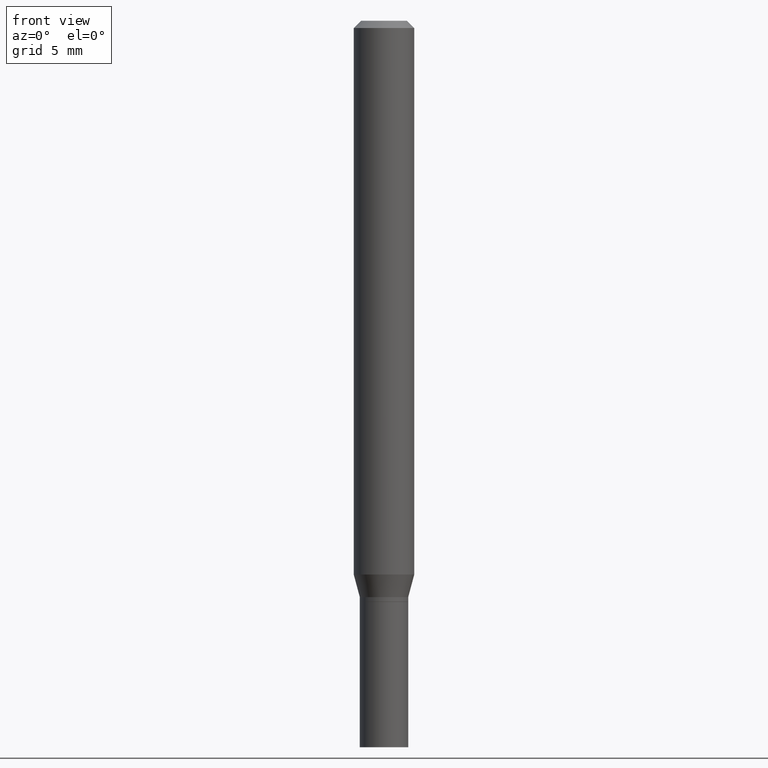
[diagram: clean part render]
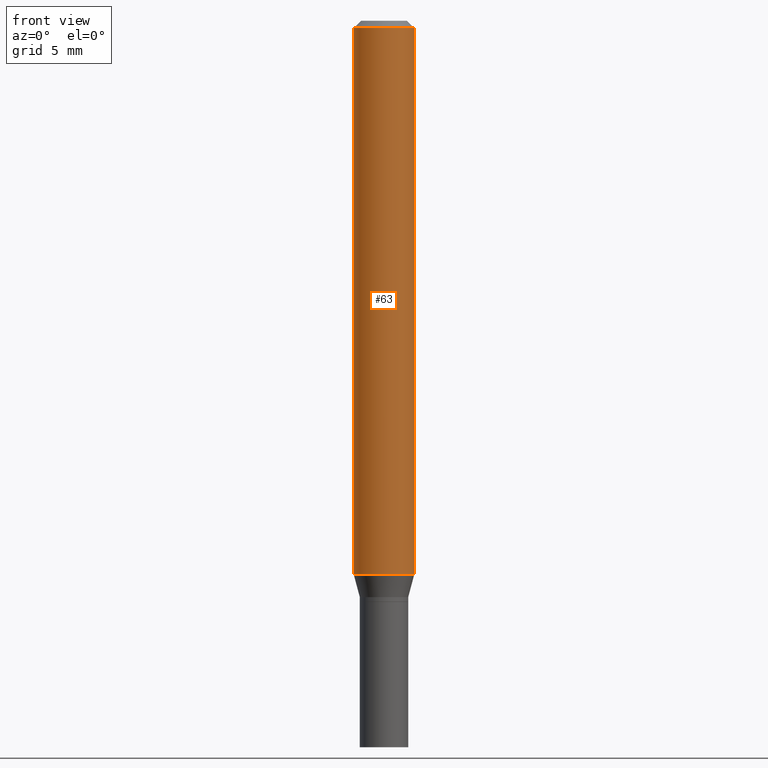
[diagram: same view with one face highlighted and labeled with its STEP entity id]
A machine part, front view. The second image highlights one B-rep face of the part: STEP entity #63.
In plain terms, the highlighted cylindrical surface (edge-blend (fillet) strip) has radius 1.5875 mm, axis along (-0, 0, 1).
Its self-contained STEP definition (entity closure, byte-faithful):
#32 = DIRECTION ( 'NONE',  ( 1.000000000000000000, -6.982962677686270655E-15, 0.000000000000000000 ) ) ;
#33 = EDGE_CURVE ( 'NONE', #134, #355, #357, .T. ) ;
#44 = EDGE_CURVE ( 'NONE', #355, #107, #313, .T. ) ;
#45 = DIRECTION ( 'NONE',  ( -2.445468806185136877E-29, 3.491481338843145188E-15, 1.000000000000000000 ) ) ;
#52 = AXIS2_PLACEMENT_3D ( 'NONE', #464, #344, #32 ) ;
#63 = ADVANCED_FACE ( 'NONE', ( #191 ), #378, .T. ) ;
#69 = VECTOR ( 'NONE', #367, 39.37007874015748143 ) ;
#77 = ORIENTED_EDGE ( 'NONE', *, *, #33, .T. ) ;
#97 = VERTEX_POINT ( 'NONE', #404 ) ;
#102 = EDGE_CURVE ( 'NONE', #134, #97, #373, .T. ) ;
#107 = VERTEX_POINT ( 'NONE', #194 ) ;
#117 = CARTESIAN_POINT ( 'NONE',  ( 3.668203209277705088E-31, -5.237222008264718399E-17, -0.01499999999999999944 ) ) ;
#134 = VERTEX_POINT ( 'NONE', #235 ) ;
#147 = DIRECTION ( 'NONE',  ( 1.000000000000000000, -6.982962677686266711E-15, 4.876176775795935793E-29 ) ) ;
#153 = DIRECTION ( 'NONE',  ( -2.445468806185136597E-29, 3.491481338843145583E-15, 1.000000000000000000 ) ) ;
#159 = VECTOR ( 'NONE', #45, 39.37007874015748143 ) ;
#187 = CARTESIAN_POINT ( 'NONE',  ( 0.06250000000000000000, -4.364351673553916694E-16, 3.047610484872459871E-30 ) ) ;
#191 = FACE_OUTER_BOUND ( 'NONE', #453, .T. ) ;
#194 = CARTESIAN_POINT ( 'NONE',  ( 0.06250000000000000000, -4.888073874380388472E-16, -0.01499999999999999944 ) ) ;
#195 = AXIS2_PLACEMENT_3D ( 'NONE', #117, #153, #334 ) ;
#209 = ORIENTED_EDGE ( 'NONE', *, *, #102, .F. ) ;
#215 = EDGE_CURVE ( 'NONE', #97, #107, #322, .T. ) ;
#235 = CARTESIAN_POINT ( 'NONE',  ( -0.06250000000000000000, -3.547893761495267568E-15, -1.143349364905389631 ) ) ;
#258 = ORIENTED_EDGE ( 'NONE', *, *, #44, .T. ) ;
#312 = AXIS2_PLACEMENT_3D ( 'NONE', #380, #340, #147 ) ;
#313 = LINE ( 'NONE', #187, #69 ) ;
#322 = CIRCLE ( 'NONE', #195, 0.06250000000000000000 ) ;
#334 = DIRECTION ( 'NONE',  ( 1.000000000000000000, -6.982962677686266711E-15, 0.000000000000000000 ) ) ;
#340 = DIRECTION ( 'NONE',  ( -2.445468806185136597E-29, 3.491481338843145583E-15, 1.000000000000000000 ) ) ;
#344 = DIRECTION ( 'NONE',  ( -2.445468806185136597E-29, 3.491481338843145583E-15, 1.000000000000000000 ) ) ;
#346 = CARTESIAN_POINT ( 'NONE',  ( -0.06250000000000000000, 4.440892098500626162E-16, -3.074334431409316114E-30 ) ) ;
#355 = VERTEX_POINT ( 'NONE', #371 ) ;
#357 = CIRCLE ( 'NONE', #52, 0.06250000000000000000 ) ;
#367 = DIRECTION ( 'NONE',  ( -2.445468806185136877E-29, 3.491481338843145188E-15, 1.000000000000000000 ) ) ;
#371 = CARTESIAN_POINT ( 'NONE',  ( 0.06250000000000000000, -4.428418138700722248E-15, -1.143349364905389631 ) ) ;
#373 = LINE ( 'NONE', #346, #159 ) ;
#378 = CYLINDRICAL_SURFACE ( 'NONE', #312, 0.06250000000000000000 ) ;
#380 = CARTESIAN_POINT ( 'NONE',  ( 0.000000000000000000, 0.000000000000000000, 0.000000000000000000 ) ) ;
#404 = CARTESIAN_POINT ( 'NONE',  ( -0.06250000000000000000, -1.578088385863926213E-15, -0.01499999999999999944 ) ) ;
#429 = ORIENTED_EDGE ( 'NONE', *, *, #215, .F. ) ;
#453 = EDGE_LOOP ( 'NONE', ( #209, #77, #258, #429 ) ) ;
#464 = CARTESIAN_POINT ( 'NONE',  ( 2.796025206447717260E-29, -3.991982971345330579E-15, -1.143349364905389631 ) ) ;